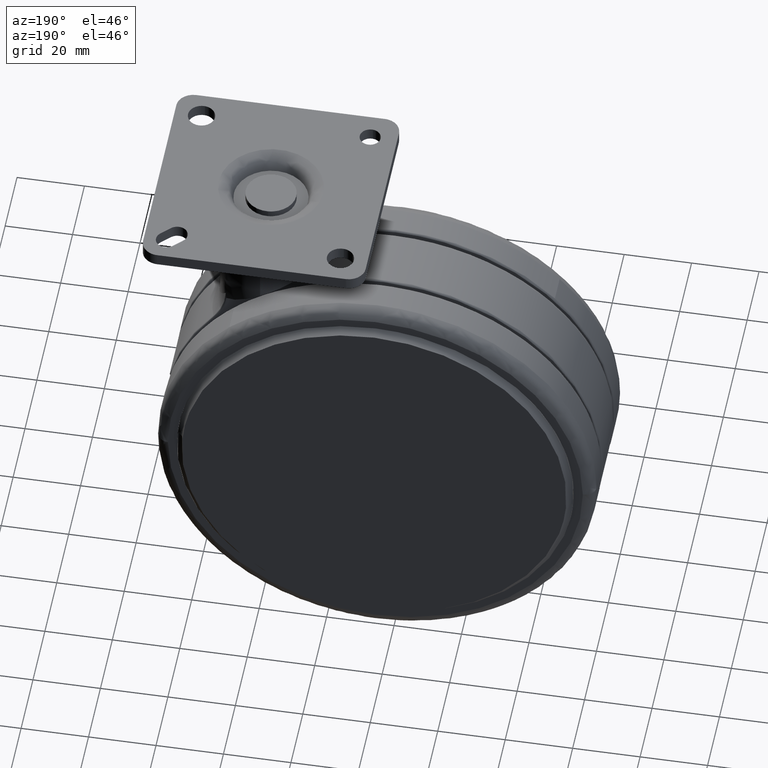
[diagram: clean part render]
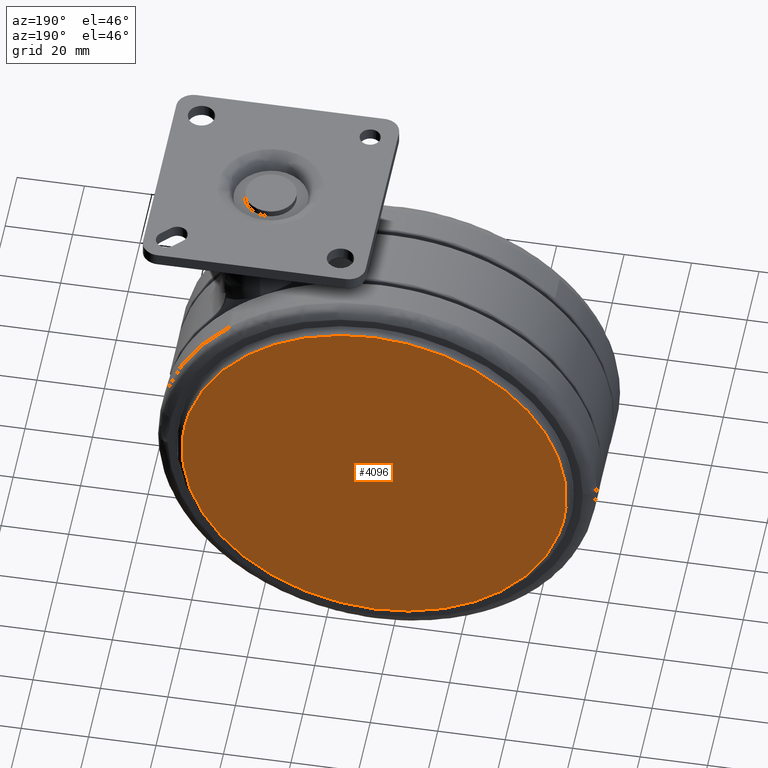
[diagram: same view with one face highlighted and labeled with its STEP entity id]
A machine part, auxiliary view. The second image highlights one B-rep face of the part: STEP entity #4096.
In plain terms, the highlighted face is a freeform B-spline surface patch.
Its self-contained STEP definition (entity closure, byte-faithful):
#4025=CARTESIAN_POINT('',(27.681094353778981,25.0,-8.805700220954234));
#4026=CARTESIAN_POINT('',(27.681094353778981,25.0,-134.194302836764110));
#4027=CARTESIAN_POINT('',(-97.681093334563911,25.0,-8.805700220954234));
#4028=CARTESIAN_POINT('',(-97.681093334563911,25.0,-134.194302836764110));
#4029=B_SPLINE_SURFACE_WITH_KNOTS('',1,1,((#4025,#4027),(#4026,#4028)),.UNSPECIFIED.,.F.,.F.,.U.,(2,2),(2,2),(0.0,125.388602615809900),(0.0,125.362187688342900),.UNSPECIFIED.);
#4030=CARTESIAN_POINT('',(-35.0,24.999999999999989,-14.500000000000110));
#4031=VERTEX_POINT('',#4030);
#4032=CARTESIAN_POINT('',(21.838057318249550,24.999999959835439,-67.206372084637280));
#4033=VERTEX_POINT('',#4032);
#4034=CARTESIAN_POINT('',(-35.0,24.999999999999989,-14.500000000000110));
#4035=CARTESIAN_POINT('',(17.856542796551889,24.999999979917717,-14.499999999871791));
#4036=CARTESIAN_POINT('',(21.838057318249550,24.999999959835435,-67.206372084637280));
#4044=(BOUNDED_CURVE()B_SPLINE_CURVE(2,(#4034,#4035,#4036),.UNSPECIFIED.,.F.,.U.)B_SPLINE_CURVE_WITH_KNOTS((3,3),(0.0,0.236870159262305),.UNSPECIFIED.)CURVE()GEOMETRIC_REPRESENTATION_ITEM()RATIONAL_B_SPLINE_CURVE((1.0,0.722489346451234,0.970850634527128))REPRESENTATION_ITEM(''));
#4045=EDGE_CURVE('',#4031,#4033,#4044,.T.);
#4046=ORIENTED_EDGE('',*,*,#4045,.T.);
#4047=CARTESIAN_POINT('',(-35.0,25.0,-128.500000000000000));
#4048=VERTEX_POINT('',#4047);
#4049=CARTESIAN_POINT('',(21.838057318249550,24.999999959835435,-67.206372084637280));
#4050=CARTESIAN_POINT('',(22.000000003336236,24.999999960537817,-69.350132047555505));
#4051=CARTESIAN_POINT('',(22.000000003272199,24.999999961295259,-71.499999999752816));
#4052=CARTESIAN_POINT('',(22.000000001574396,24.999999981377542,-128.499999999881060));
#4053=CARTESIAN_POINT('',(-35.0,25.0,-128.500000000000000));
#4061=(BOUNDED_CURVE()B_SPLINE_CURVE(2,(#4049,#4050,#4051,#4052,#4053),.UNSPECIFIED.,.F.,.U.)B_SPLINE_CURVE_WITH_KNOTS((3,2,3),(0.236870159262305,0.250000000000000,0.500000000000000),.UNSPECIFIED.)CURVE()GEOMETRIC_REPRESENTATION_ITEM()RATIONAL_B_SPLINE_CURVE((0.970850634527128,0.984617434735314,1.0,0.707106781186547,1.0))REPRESENTATION_ITEM(''));
#4062=EDGE_CURVE('',#4033,#4048,#4061,.T.);
#4063=ORIENTED_EDGE('',*,*,#4062,.T.);
#4064=CARTESIAN_POINT('',(-91.838057318249554,24.999999959835439,-75.793627915362734));
#4065=VERTEX_POINT('',#4064);
#4066=CARTESIAN_POINT('',(-35.0,25.0,-128.500000000000000));
#4067=CARTESIAN_POINT('',(-87.856542796551878,24.999999979917714,-128.500000000128270));
#4068=CARTESIAN_POINT('',(-91.838057318249554,24.999999959835431,-75.793627915362748));
#4076=(BOUNDED_CURVE()B_SPLINE_CURVE(2,(#4066,#4067,#4068),.UNSPECIFIED.,.F.,.U.)B_SPLINE_CURVE_WITH_KNOTS((3,3),(0.500000000000000,0.736870159262305),.UNSPECIFIED.)CURVE()GEOMETRIC_REPRESENTATION_ITEM()RATIONAL_B_SPLINE_CURVE((1.0,0.722489346451234,0.970850634527128))REPRESENTATION_ITEM(''));
#4077=EDGE_CURVE('',#4048,#4065,#4076,.T.);
#4078=ORIENTED_EDGE('',*,*,#4077,.T.);
#4079=CARTESIAN_POINT('',(-91.838057318249554,24.999999959835431,-75.793627915362748));
#4080=CARTESIAN_POINT('',(-92.000000003336254,24.999999960537821,-73.649867952444509));
#4081=CARTESIAN_POINT('',(-92.000000003272206,24.999999961295259,-71.500000000247184));
#4082=CARTESIAN_POINT('',(-92.000000001574406,24.999999981377542,-14.500000000118980));
#4083=CARTESIAN_POINT('',(-35.0,24.999999999999989,-14.500000000000110));
#4091=(BOUNDED_CURVE()B_SPLINE_CURVE(2,(#4079,#4080,#4081,#4082,#4083),.UNSPECIFIED.,.F.,.U.)B_SPLINE_CURVE_WITH_KNOTS((3,2,3),(0.736870159262305,0.750000000000000,1.0),.UNSPECIFIED.)CURVE()GEOMETRIC_REPRESENTATION_ITEM()RATIONAL_B_SPLINE_CURVE((0.970850634527128,0.984617434735314,1.0,0.707106781186547,1.0))REPRESENTATION_ITEM(''));
#4092=EDGE_CURVE('',#4065,#4031,#4091,.T.);
#4093=ORIENTED_EDGE('',*,*,#4092,.T.);
#4094=EDGE_LOOP('',(#4046,#4063,#4078,#4093));
#4095=FACE_OUTER_BOUND('',#4094,.T.);
#4096=ADVANCED_FACE('',(#4095),#4029,.T.);